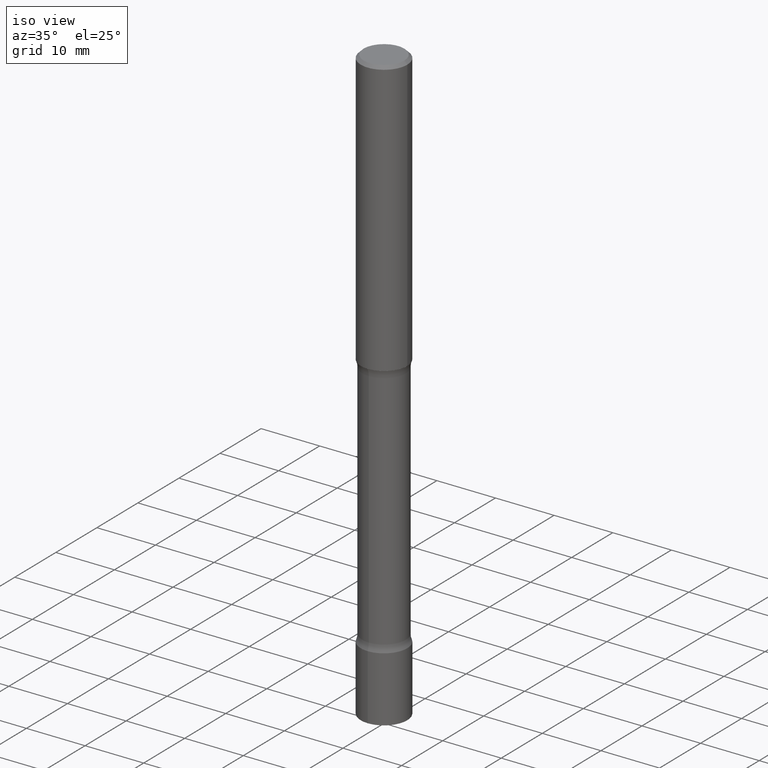
[diagram: clean part render]
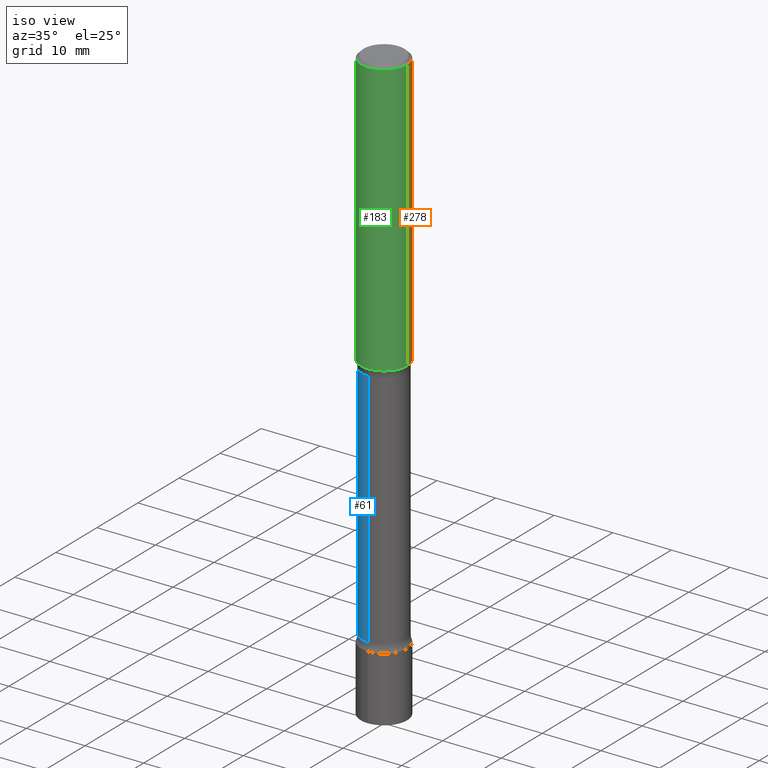
[diagram: same view with three faces highlighted in distinct colors, each labeled with its STEP entity id]
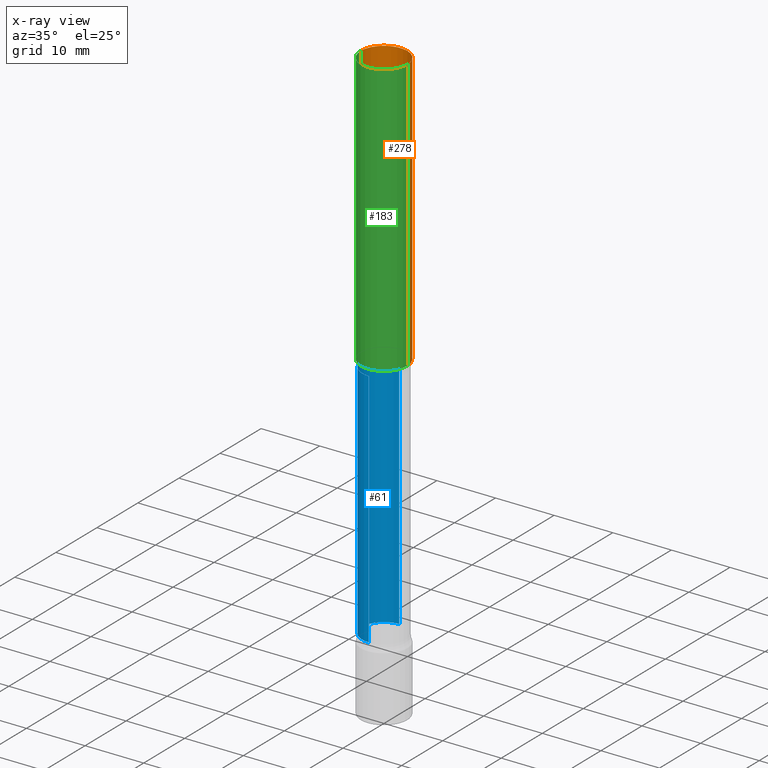
[diagram: x-ray of the same camera — body ghosted, the three highlighted faces saturated]
A machine part, iso view with three faces highlighted in distinct colors.
The next image is the same camera in x-ray (body ghosted, the three faces saturated) — at least one of them is partly hidden behind the body in this view.
Their STEP definitions:

[orange] entity #278 — the highlighted cylindrical surface (edge-blend (fillet) strip) has radius 3.9687 mm, axis along (-0, 0, 1).
#16 = VERTEX_POINT ( 'NONE', #382 ) ;
#39 = DIRECTION ( 'NONE',  ( -2.445468806185136597E-29, 3.491481338843145583E-15, 1.000000000000000000 ) ) ;
#47 = DIRECTION ( 'NONE',  ( 1.000000000000000000, -6.982962677686266711E-15, 4.876176775795936353E-29 ) ) ;
#48 = ORIENTED_EDGE ( 'NONE', *, *, #474, .T. ) ;
#63 = AXIS2_PLACEMENT_3D ( 'NONE', #376, #269, #424 ) ;
#73 = DIRECTION ( 'NONE',  ( -2.445468806185136877E-29, 3.491481338843145188E-15, 1.000000000000000000 ) ) ;
#75 = VERTEX_POINT ( 'NONE', #144 ) ;
#111 = CARTESIAN_POINT ( 'NONE',  ( 0.1562499999999998612, -1.091087918388478187E-15, 7.619026212181143371E-30 ) ) ;
#128 = AXIS2_PLACEMENT_3D ( 'NONE', #286, #439, #401 ) ;
#144 = CARTESIAN_POINT ( 'NONE',  ( -0.1562500000000000000, -2.150820545854337949E-15, -1.847999999999999421 ) ) ;
#146 = LINE ( 'NONE', #182, #435 ) ;
#182 = CARTESIAN_POINT ( 'NONE',  ( -0.1562499999999998612, 1.110223024625155554E-15, -7.685836078523284153E-30 ) ) ;
#261 = CARTESIAN_POINT ( 'NONE',  ( 0.1562499999999997780, -1.141782438928663330E-15, -0.02000000000000006981 ) ) ;
#269 = DIRECTION ( 'NONE',  ( -2.445468806185136597E-29, 3.491481338843145583E-15, 1.000000000000000000 ) ) ;
#272 = CARTESIAN_POINT ( 'NONE',  ( 0.000000000000000000, 0.000000000000000000, 0.000000000000000000 ) ) ;
#278 = ADVANCED_FACE ( 'NONE', ( #343 ), #502, .T. ) ;
#281 = CIRCLE ( 'NONE', #63, 0.1562499999999997780 ) ;
#286 = CARTESIAN_POINT ( 'NONE',  ( 4.519226353830131610E-29, -6.452257514182131992E-15, -1.847999999999999421 ) ) ;
#335 = DIRECTION ( 'NONE',  ( -2.445468806185136877E-29, 3.491481338843145188E-15, 1.000000000000000000 ) ) ;
#340 = ORIENTED_EDGE ( 'NONE', *, *, #503, .F. ) ;
#343 = FACE_OUTER_BOUND ( 'NONE', #477, .T. ) ;
#346 = CARTESIAN_POINT ( 'NONE',  ( 0.1562500000000000000, -7.543345432570611166E-15, -1.847999999999999421 ) ) ;
#350 = CIRCLE ( 'NONE', #128, 0.1562500000000000000 ) ;
#376 = CARTESIAN_POINT ( 'NONE',  ( 4.890937612370289799E-31, -6.982962677686315028E-17, -0.02000000000000006981 ) ) ;
#382 = CARTESIAN_POINT ( 'NONE',  ( -0.1562499999999997780, 1.021258291611614298E-15, -0.02000000000000006981 ) ) ;
#395 = EDGE_CURVE ( 'NONE', #420, #75, #350, .T. ) ;
#401 = DIRECTION ( 'NONE',  ( 1.000000000000000000, -6.982962677686269077E-15, 0.000000000000000000 ) ) ;
#415 = ORIENTED_EDGE ( 'NONE', *, *, #395, .T. ) ;
#416 = LINE ( 'NONE', #111, #489 ) ;
#420 = VERTEX_POINT ( 'NONE', #346 ) ;
#424 = DIRECTION ( 'NONE',  ( 1.000000000000000000, -6.982962677686266711E-15, 0.000000000000000000 ) ) ;
#435 = VECTOR ( 'NONE', #335, 39.37007874015748143 ) ;
#439 = DIRECTION ( 'NONE',  ( -2.445468806185136597E-29, 3.491481338843145583E-15, 1.000000000000000000 ) ) ;
#445 = VERTEX_POINT ( 'NONE', #261 ) ;
#449 = ORIENTED_EDGE ( 'NONE', *, *, #455, .F. ) ;
#455 = EDGE_CURVE ( 'NONE', #445, #16, #281, .T. ) ;
#474 = EDGE_CURVE ( 'NONE', #75, #16, #146, .T. ) ;
#477 = EDGE_LOOP ( 'NONE', ( #415, #48, #449, #340 ) ) ;
#488 = AXIS2_PLACEMENT_3D ( 'NONE', #272, #39, #47 ) ;
#489 = VECTOR ( 'NONE', #73, 39.37007874015748143 ) ;
#502 = CYLINDRICAL_SURFACE ( 'NONE', #488, 0.1562499999999998612 ) ;
#503 = EDGE_CURVE ( 'NONE', #420, #445, #416, .T. ) ;

[blue] entity #61 — the highlighted cylindrical surface (edge-blend (fillet) strip) has radius 3.7147 mm, axis along (0, -0, -1).
#15 = LINE ( 'NONE', #325, #441 ) ;
#44 = FACE_OUTER_BOUND ( 'NONE', #198, .T. ) ;
#52 = DIRECTION ( 'NONE',  ( 2.048022150416317595E-29, -4.060647571162904696E-15, -1.000000000000000000 ) ) ;
#55 = DIRECTION ( 'NONE',  ( 2.048022150416317595E-29, -4.060647571162904696E-15, -1.000000000000000000 ) ) ;
#59 = VERTEX_POINT ( 'NONE', #158 ) ;
#61 = ADVANCED_FACE ( 'NONE', ( #44 ), #310, .T. ) ;
#89 = AXIS2_PLACEMENT_3D ( 'NONE', #338, #173, #374 ) ;
#114 = EDGE_CURVE ( 'NONE', #59, #372, #215, .T. ) ;
#117 = EDGE_CURVE ( 'NONE', #59, #258, #367, .T. ) ;
#125 = DIRECTION ( 'NONE',  ( 2.048022150416317595E-29, -4.060647571162904696E-15, -1.000000000000000000 ) ) ;
#158 = CARTESIAN_POINT ( 'NONE',  ( -1.037650322162884187E-15, -0.1462500000000046263, -1.896989794855662659 ) ) ;
#166 = AXIS2_PLACEMENT_3D ( 'NONE', #249, #52, #202 ) ;
#173 = DIRECTION ( 'NONE',  ( 2.048022150416317595E-29, -4.060647571162904696E-15, -1.000000000000000000 ) ) ;
#190 = CARTESIAN_POINT ( 'NONE',  ( 9.610918771565439061E-29, -1.421074472655638094E-14, -4.000000000000000000 ) ) ;
#198 = EDGE_LOOP ( 'NONE', ( #255, #326, #298, #481 ) ) ;
#202 = DIRECTION ( 'NONE',  ( 6.982962677686265922E-15, 1.000000000000000000, -3.735860504156284699E-15 ) ) ;
#213 = AXIS2_PLACEMENT_3D ( 'NONE', #190, #464, #245 ) ;
#215 = CIRCLE ( 'NONE', #166, 0.1462499999999989364 ) ;
#216 = CARTESIAN_POINT ( 'NONE',  ( 1.021258291611703439E-15, 0.1462499999999878897, -3.513510205144336318 ) ) ;
#228 = CIRCLE ( 'NONE', #89, 0.1462500000000001299 ) ;
#245 = DIRECTION ( 'NONE',  ( 6.982962677686266711E-15, 1.000000000000000000, -3.735860504156269711E-15 ) ) ;
#249 = CARTESIAN_POINT ( 'NONE',  ( 5.303907288878273163E-29, -5.671161444906225909E-15, -1.896989794855663325 ) ) ;
#255 = ORIENTED_EDGE ( 'NONE', *, *, #117, .F. ) ;
#258 = VERTEX_POINT ( 'NONE', #427 ) ;
#298 = ORIENTED_EDGE ( 'NONE', *, *, #384, .T. ) ;
#310 = CYLINDRICAL_SURFACE ( 'NONE', #213, 0.1462499999999995193 ) ;
#316 = CARTESIAN_POINT ( 'NONE',  ( 1.021258291611662024E-15, 0.1462499999999932743, -1.896989794855663769 ) ) ;
#325 = CARTESIAN_POINT ( 'NONE',  ( 1.021258291611709158E-15, 0.1462499999999853362, -4.000000000000000888 ) ) ;
#326 = ORIENTED_EDGE ( 'NONE', *, *, #114, .T. ) ;
#334 = VERTEX_POINT ( 'NONE', #216 ) ;
#338 = CARTESIAN_POINT ( 'NONE',  ( 8.614576895749548088E-29, -1.223528112268018578E-14, -3.513510205144335874 ) ) ;
#367 = LINE ( 'NONE', #404, #392 ) ;
#372 = VERTEX_POINT ( 'NONE', #316 ) ;
#374 = DIRECTION ( 'NONE',  ( 6.982962677686265922E-15, 1.000000000000000000, -3.735860504156253934E-15 ) ) ;
#384 = EDGE_CURVE ( 'NONE', #372, #334, #15, .T. ) ;
#392 = VECTOR ( 'NONE', #55, 39.37007874015748143 ) ;
#404 = CARTESIAN_POINT ( 'NONE',  ( -1.003347832173987079E-15, -0.1462500000000137301, -3.999999999999999556 ) ) ;
#427 = CARTESIAN_POINT ( 'NONE',  ( -1.037650322162858944E-15, -0.1462500000000123701, -3.513510205144335430 ) ) ;
#441 = VECTOR ( 'NONE', #125, 39.37007874015748143 ) ;
#464 = DIRECTION ( 'NONE',  ( 2.048022150416317595E-29, -4.060647571162904696E-15, -1.000000000000000000 ) ) ;
#481 = ORIENTED_EDGE ( 'NONE', *, *, #493, .F. ) ;
#493 = EDGE_CURVE ( 'NONE', #258, #334, #228, .T. ) ;

[green] entity #183 — the highlighted cylindrical surface (edge-blend (fillet) strip) has radius 3.9687 mm, axis along (-0, 0, 1).
#6 = CIRCLE ( 'NONE', #28, 0.1562500000000000000 ) ;
#16 = VERTEX_POINT ( 'NONE', #382 ) ;
#28 = AXIS2_PLACEMENT_3D ( 'NONE', #143, #458, #231 ) ;
#35 = CYLINDRICAL_SURFACE ( 'NONE', #429, 0.1562499999999998612 ) ;
#62 = ORIENTED_EDGE ( 'NONE', *, *, #109, .F. ) ;
#73 = DIRECTION ( 'NONE',  ( -2.445468806185136877E-29, 3.491481338843145188E-15, 1.000000000000000000 ) ) ;
#75 = VERTEX_POINT ( 'NONE', #144 ) ;
#94 = DIRECTION ( 'NONE',  ( -2.445468806185136597E-29, 3.491481338843145583E-15, 1.000000000000000000 ) ) ;
#109 = EDGE_CURVE ( 'NONE', #16, #445, #385, .T. ) ;
#111 = CARTESIAN_POINT ( 'NONE',  ( 0.1562499999999998612, -1.091087918388478187E-15, 7.619026212181143371E-30 ) ) ;
#124 = DIRECTION ( 'NONE',  ( 1.000000000000000000, -6.982962677686266711E-15, 0.000000000000000000 ) ) ;
#143 = CARTESIAN_POINT ( 'NONE',  ( 4.519226353830131610E-29, -6.452257514182131992E-15, -1.847999999999999421 ) ) ;
#144 = CARTESIAN_POINT ( 'NONE',  ( -0.1562500000000000000, -2.150820545854337949E-15, -1.847999999999999421 ) ) ;
#146 = LINE ( 'NONE', #182, #435 ) ;
#182 = CARTESIAN_POINT ( 'NONE',  ( -0.1562499999999998612, 1.110223024625155554E-15, -7.685836078523284153E-30 ) ) ;
#183 = ADVANCED_FACE ( 'NONE', ( #262 ), #35, .T. ) ;
#185 = DIRECTION ( 'NONE',  ( -2.445468806185136597E-29, 3.491481338843145583E-15, 1.000000000000000000 ) ) ;
#196 = EDGE_CURVE ( 'NONE', #75, #420, #6, .T. ) ;
#225 = DIRECTION ( 'NONE',  ( 1.000000000000000000, -6.982962677686266711E-15, 4.876176775795936353E-29 ) ) ;
#231 = DIRECTION ( 'NONE',  ( 1.000000000000000000, -6.982962677686269077E-15, 0.000000000000000000 ) ) ;
#261 = CARTESIAN_POINT ( 'NONE',  ( 0.1562499999999997780, -1.141782438928663330E-15, -0.02000000000000006981 ) ) ;
#262 = FACE_OUTER_BOUND ( 'NONE', #266, .T. ) ;
#266 = EDGE_LOOP ( 'NONE', ( #282, #293, #332, #62 ) ) ;
#282 = ORIENTED_EDGE ( 'NONE', *, *, #474, .F. ) ;
#293 = ORIENTED_EDGE ( 'NONE', *, *, #196, .T. ) ;
#332 = ORIENTED_EDGE ( 'NONE', *, *, #503, .T. ) ;
#335 = DIRECTION ( 'NONE',  ( -2.445468806185136877E-29, 3.491481338843145188E-15, 1.000000000000000000 ) ) ;
#346 = CARTESIAN_POINT ( 'NONE',  ( 0.1562500000000000000, -7.543345432570611166E-15, -1.847999999999999421 ) ) ;
#382 = CARTESIAN_POINT ( 'NONE',  ( -0.1562499999999997780, 1.021258291611614298E-15, -0.02000000000000006981 ) ) ;
#385 = CIRCLE ( 'NONE', #421, 0.1562499999999997780 ) ;
#408 = CARTESIAN_POINT ( 'NONE',  ( 4.890937612370289799E-31, -6.982962677686315028E-17, -0.02000000000000006981 ) ) ;
#416 = LINE ( 'NONE', #111, #489 ) ;
#420 = VERTEX_POINT ( 'NONE', #346 ) ;
#421 = AXIS2_PLACEMENT_3D ( 'NONE', #408, #94, #124 ) ;
#422 = CARTESIAN_POINT ( 'NONE',  ( 0.000000000000000000, 0.000000000000000000, 0.000000000000000000 ) ) ;
#429 = AXIS2_PLACEMENT_3D ( 'NONE', #422, #185, #225 ) ;
#435 = VECTOR ( 'NONE', #335, 39.37007874015748143 ) ;
#445 = VERTEX_POINT ( 'NONE', #261 ) ;
#458 = DIRECTION ( 'NONE',  ( -2.445468806185136597E-29, 3.491481338843145583E-15, 1.000000000000000000 ) ) ;
#474 = EDGE_CURVE ( 'NONE', #75, #16, #146, .T. ) ;
#489 = VECTOR ( 'NONE', #73, 39.37007874015748143 ) ;
#503 = EDGE_CURVE ( 'NONE', #420, #445, #416, .T. ) ;